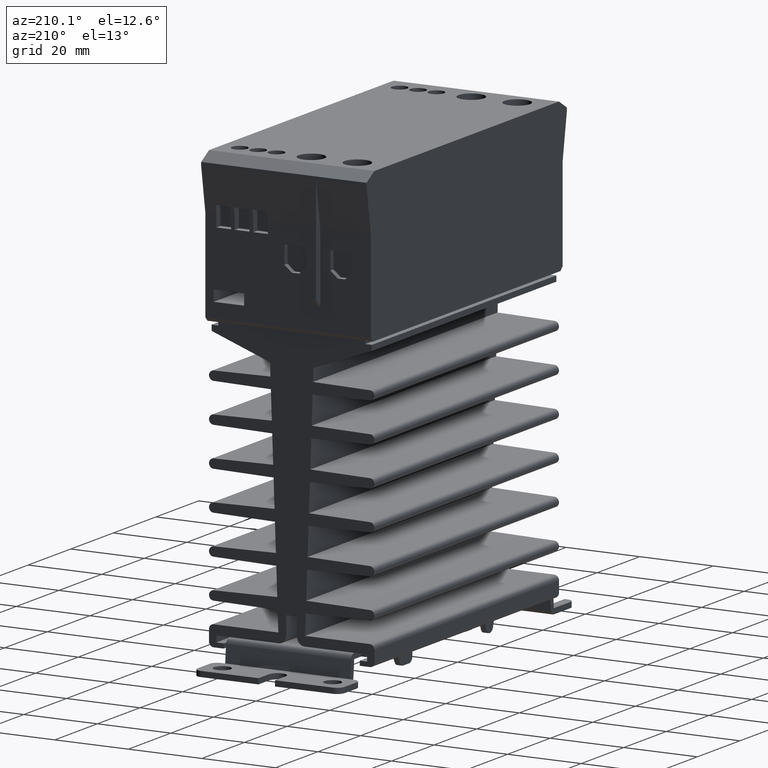
[diagram: clean part render]
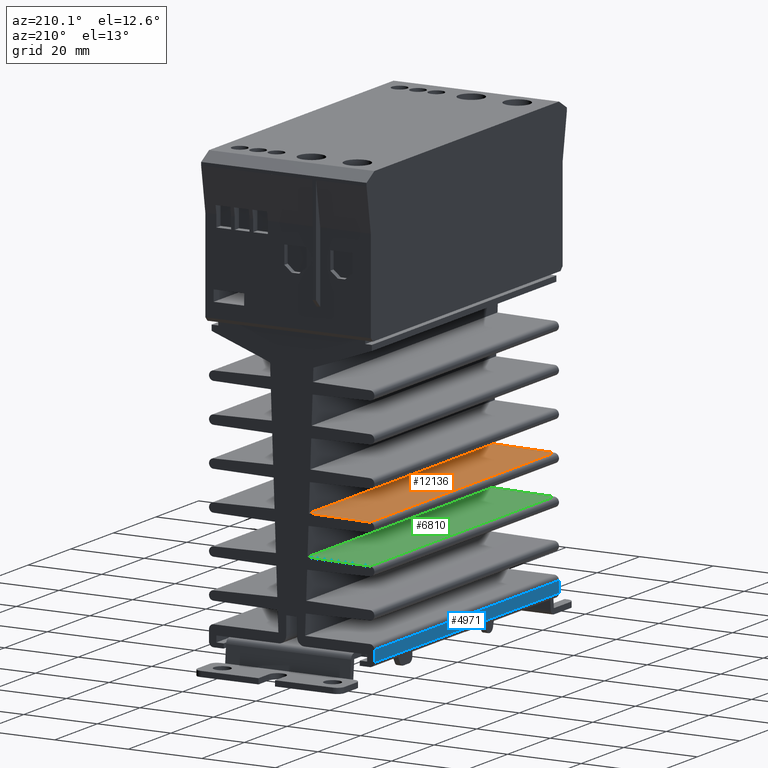
[diagram: same view with three faces highlighted in distinct colors, each labeled with its STEP entity id]
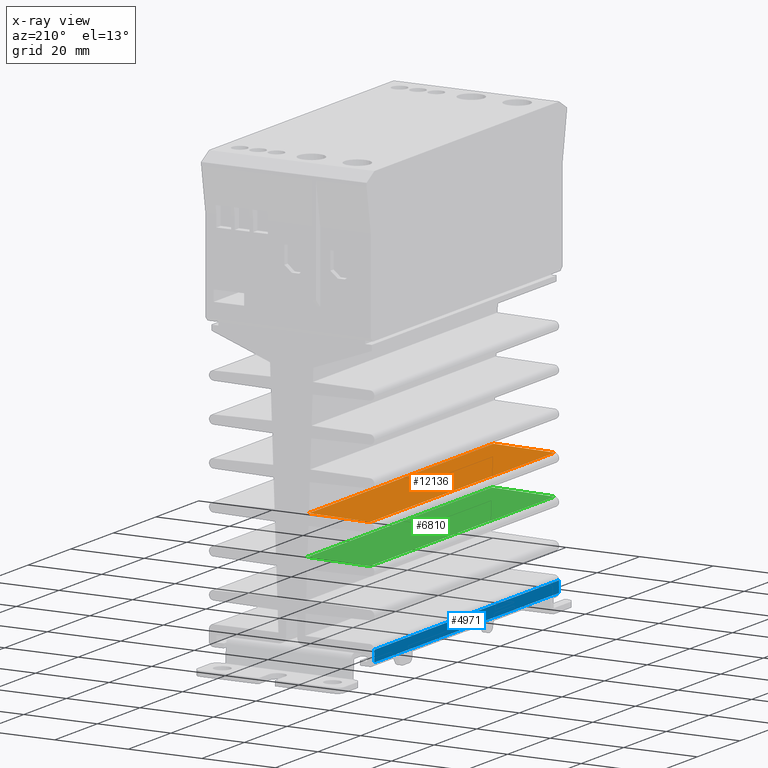
[diagram: x-ray of the same camera — body ghosted, the three highlighted faces saturated]
A machine part, auxiliary view with three faces highlighted in distinct colors.
The next image is the same camera in x-ray (body ghosted, the three faces saturated) — at least one of them is partly hidden behind the body in this view.
Their STEP definitions:

[orange] entity #12136 — the highlighted planar face has unit normal (0.0175, 0, -0.9998).
#493 = DIRECTION ( 'NONE',  ( 1.129400021112925963E-21, -1.000000000000000000, -6.470328387533290063E-20 ) ) ;
#502 = LINE ( 'NONE', #6511, #12016 ) ;
#692 = DIRECTION ( 'NONE',  ( -0.9998476951563911586, 0.000000000000000000, -0.01745240643728455249 ) ) ;
#767 = CARTESIAN_POINT ( 'NONE',  ( 1.223867716535433268E-15, -1.704724409448818978, -1.709798797646474133 ) ) ;
#826 = VECTOR ( 'NONE', #8055, 39.37007874015748854 ) ;
#893 = VERTEX_POINT ( 'NONE', #3731 ) ;
#1159 = ORIENTED_EDGE ( 'NONE', *, *, #11179, .F. ) ;
#1793 = PLANE ( 'NONE',  #9614 ) ;
#3080 = ORIENTED_EDGE ( 'NONE', *, *, #4628, .F. ) ;
#3210 = CARTESIAN_POINT ( 'NONE',  ( -0.1838573246735787370, -1.704724409448818978, -1.713008039186181053 ) ) ;
#3475 = LINE ( 'NONE', #4430, #4489 ) ;
#3731 = CARTESIAN_POINT ( 'NONE',  ( -0.8374730514978977469, 1.704724409448818978, -1.724416944136004215 ) ) ;
#4430 = CARTESIAN_POINT ( 'NONE',  ( -0.8374730514978977469, -1.704724409448818978, -1.724416944136004215 ) ) ;
#4455 = VECTOR ( 'NONE', #493, 39.37007874015748143 ) ;
#4489 = VECTOR ( 'NONE', #7234, 39.37007874015748143 ) ;
#4628 = EDGE_CURVE ( 'NONE', #11361, #10827, #7340, .T. ) ;
#5727 = EDGE_CURVE ( 'NONE', #11361, #893, #502, .T. ) ;
#5772 = CARTESIAN_POINT ( 'NONE',  ( -0.8374730514978977469, -1.704724409448818978, -1.724416944136004215 ) ) ;
#6511 = CARTESIAN_POINT ( 'NONE',  ( -0.1838573246735787370, 1.704724409448818978, -1.713008039186181053 ) ) ;
#6602 = VERTEX_POINT ( 'NONE', #5772 ) ;
#6866 = EDGE_LOOP ( 'NONE', ( #10645, #1159, #10204, #3080 ) ) ;
#7143 = EDGE_CURVE ( 'NONE', #10827, #6602, #9898, .T. ) ;
#7234 = DIRECTION ( 'NONE',  ( -0.000000000000000000, 1.000000000000000000, -0.000000000000000000 ) ) ;
#7271 = CARTESIAN_POINT ( 'NONE',  ( -0.1838573246735787370, -1.704724409448818978, -1.713008039186181053 ) ) ;
#7340 = LINE ( 'NONE', #7271, #4455 ) ;
#8055 = DIRECTION ( 'NONE',  ( -0.9998476951563911586, 0.000000000000000000, -0.01745240643728500005 ) ) ;
#8884 = CARTESIAN_POINT ( 'NONE',  ( -0.1838573246735791533, -1.704724409448818978, -1.713008039186181053 ) ) ;
#9614 = AXIS2_PLACEMENT_3D ( 'NONE', #767, #11383, #10543 ) ;
#9898 = LINE ( 'NONE', #8884, #826 ) ;
#10204 = ORIENTED_EDGE ( 'NONE', *, *, #7143, .F. ) ;
#10543 = DIRECTION ( 'NONE',  ( -0.9998476951563911586, 0.000000000000000000, -0.01745240643728500005 ) ) ;
#10645 = ORIENTED_EDGE ( 'NONE', *, *, #5727, .T. ) ;
#10827 = VERTEX_POINT ( 'NONE', #3210 ) ;
#11179 = EDGE_CURVE ( 'NONE', #6602, #893, #3475, .T. ) ;
#11254 = FACE_OUTER_BOUND ( 'NONE', #6866, .T. ) ;
#11361 = VERTEX_POINT ( 'NONE', #11579 ) ;
#11383 = DIRECTION ( 'NONE',  ( 0.01745240643728500352, 6.471314000000001296E-20, -0.9998476951563912696 ) ) ;
#11579 = CARTESIAN_POINT ( 'NONE',  ( -0.1838573246735787370, 1.704724409448818978, -1.713008039186181053 ) ) ;
#12016 = VECTOR ( 'NONE', #692, 39.37007874015748854 ) ;
#12136 = ADVANCED_FACE ( 'NONE', ( #11254 ), #1793, .F. ) ;

[blue] entity #4971 — the highlighted planar face has unit normal (1, 0, 0).
#843 = CARTESIAN_POINT ( 'NONE',  ( -0.8858267716535432879, 0.000000000000000000, -3.051181102362204633 ) ) ;
#1058 = CARTESIAN_POINT ( 'NONE',  ( -0.8858267716535432879, 1.704724409448818978, -2.931102362204724532 ) ) ;
#1208 = VERTEX_POINT ( 'NONE', #8295 ) ;
#1578 = CARTESIAN_POINT ( 'NONE',  ( -0.8858267716535432879, -1.704724409448818978, -2.931102362204724532 ) ) ;
#1713 = EDGE_CURVE ( 'NONE', #7411, #5882, #3610, .T. ) ;
#2335 = DIRECTION ( 'NONE',  ( 1.000000000000000000, 0.000000000000000000, 0.000000000000000000 ) ) ;
#2488 = VERTEX_POINT ( 'NONE', #1578 ) ;
#2758 = CARTESIAN_POINT ( 'NONE',  ( -0.8858267716535432879, 0.000000000000000000, -2.931102362204724532 ) ) ;
#2885 = CARTESIAN_POINT ( 'NONE',  ( -0.8858267716535432879, 1.704724409448818978, -3.051181102362204633 ) ) ;
#3293 = EDGE_CURVE ( 'NONE', #1208, #5882, #12528, .T. ) ;
#3610 = LINE ( 'NONE', #7761, #12570 ) ;
#4575 = DIRECTION ( 'NONE',  ( 0.000000000000000000, 0.000000000000000000, -1.000000000000000000 ) ) ;
#4971 = ADVANCED_FACE ( 'NONE', ( #9951 ), #8868, .F. ) ;
#5441 = VECTOR ( 'NONE', #7679, 39.37007874015748143 ) ;
#5503 = ORIENTED_EDGE ( 'NONE', *, *, #3293, .F. ) ;
#5575 = LINE ( 'NONE', #2758, #5910 ) ;
#5882 = VERTEX_POINT ( 'NONE', #2885 ) ;
#5910 = VECTOR ( 'NONE', #9663, 39.37007874015748143 ) ;
#6023 = ORIENTED_EDGE ( 'NONE', *, *, #8538, .F. ) ;
#6106 = EDGE_LOOP ( 'NONE', ( #6023, #8801, #11719, #5503 ) ) ;
#7411 = VERTEX_POINT ( 'NONE', #1058 ) ;
#7433 = LINE ( 'NONE', #12479, #10339 ) ;
#7679 = DIRECTION ( 'NONE',  ( 0.000000000000000000, 1.000000000000000000, 0.000000000000000000 ) ) ;
#7761 = CARTESIAN_POINT ( 'NONE',  ( -0.8858267716535432879, 1.704724409448818978, -1.612511619520417216 ) ) ;
#7908 = CARTESIAN_POINT ( 'NONE',  ( -0.8858267716535432879, 0.000000000000000000, -2.881889763779527769 ) ) ;
#8295 = CARTESIAN_POINT ( 'NONE',  ( -0.8858267716535432879, -1.704724409448818978, -3.051181102362204633 ) ) ;
#8538 = EDGE_CURVE ( 'NONE', #2488, #1208, #7433, .T. ) ;
#8801 = ORIENTED_EDGE ( 'NONE', *, *, #9619, .F. ) ;
#8868 = PLANE ( 'NONE',  #10374 ) ;
#9619 = EDGE_CURVE ( 'NONE', #7411, #2488, #5575, .T. ) ;
#9663 = DIRECTION ( 'NONE',  ( -0.000000000000000000, -1.000000000000000000, -0.000000000000000000 ) ) ;
#9829 = DIRECTION ( 'NONE',  ( 0.000000000000000000, 0.000000000000000000, -1.000000000000000000 ) ) ;
#9951 = FACE_OUTER_BOUND ( 'NONE', #6106, .T. ) ;
#10339 = VECTOR ( 'NONE', #11320, 39.37007874015748143 ) ;
#10374 = AXIS2_PLACEMENT_3D ( 'NONE', #7908, #2335, #9829 ) ;
#11320 = DIRECTION ( 'NONE',  ( 0.000000000000000000, 0.000000000000000000, -1.000000000000000000 ) ) ;
#11719 = ORIENTED_EDGE ( 'NONE', *, *, #1713, .T. ) ;
#12479 = CARTESIAN_POINT ( 'NONE',  ( -0.8858267716535432879, -1.704724409448818978, -1.612511619520417216 ) ) ;
#12528 = LINE ( 'NONE', #843, #5441 ) ;
#12570 = VECTOR ( 'NONE', #4575, 39.37007874015748143 ) ;

[green] entity #6810 — the highlighted planar face has unit normal (0.0175, 0, -0.9998).
#9 = VECTOR ( 'NONE', #9255, 39.37007874015748143 ) ;
#95 = VECTOR ( 'NONE', #3965, 39.37007874015748854 ) ;
#111 = EDGE_CURVE ( 'NONE', #12350, #173, #6317, .T. ) ;
#173 = VERTEX_POINT ( 'NONE', #6068 ) ;
#707 = DIRECTION ( 'NONE',  ( -0.9998476951563911586, 0.000000000000000000, -0.01745240643728464963 ) ) ;
#1528 = DIRECTION ( 'NONE',  ( -0.9998476951563911586, 0.000000000000000000, -0.01745240643728500005 ) ) ;
#2874 = VERTEX_POINT ( 'NONE', #4326 ) ;
#3215 = VERTEX_POINT ( 'NONE', #10112 ) ;
#3965 = DIRECTION ( 'NONE',  ( -0.9998476951563911586, 0.000000000000000000, -0.01745240643728545107 ) ) ;
#4001 = EDGE_CURVE ( 'NONE', #173, #2874, #5729, .T. ) ;
#4145 = CARTESIAN_POINT ( 'NONE',  ( -0.1692929677819836609, -1.704724409448818978, -2.130076652036669405 ) ) ;
#4326 = CARTESIAN_POINT ( 'NONE',  ( -0.8374730514978977469, 1.704724409448818978, -2.141739778781673209 ) ) ;
#4357 = FACE_OUTER_BOUND ( 'NONE', #9632, .T. ) ;
#5292 = LINE ( 'NONE', #11162, #9 ) ;
#5370 = DIRECTION ( 'NONE',  ( 0.01745240643728500352, 6.471314000000001296E-20, -0.9998476951563912696 ) ) ;
#5576 = LINE ( 'NONE', #9475, #12242 ) ;
#5729 = LINE ( 'NONE', #12618, #12174 ) ;
#6068 = CARTESIAN_POINT ( 'NONE',  ( -0.8374730514978977469, -1.704724409448818978, -2.141739778781673209 ) ) ;
#6317 = LINE ( 'NONE', #10222, #95 ) ;
#6516 = CARTESIAN_POINT ( 'NONE',  ( 1.223867716535433268E-15, -1.704724409448818978, -2.127121632292146014 ) ) ;
#6810 = ADVANCED_FACE ( 'NONE', ( #4357 ), #8253, .F. ) ;
#6997 = ORIENTED_EDGE ( 'NONE', *, *, #4001, .F. ) ;
#8014 = ORIENTED_EDGE ( 'NONE', *, *, #10275, .F. ) ;
#8253 = PLANE ( 'NONE',  #11438 ) ;
#8659 = ORIENTED_EDGE ( 'NONE', *, *, #11432, .T. ) ;
#9255 = DIRECTION ( 'NONE',  ( 1.129400021112925963E-21, -1.000000000000000000, -6.470328387533290063E-20 ) ) ;
#9475 = CARTESIAN_POINT ( 'NONE',  ( -0.1692929677819836609, 1.704724409448818978, -2.130076652036669405 ) ) ;
#9492 = DIRECTION ( 'NONE',  ( -0.000000000000000000, 1.000000000000000000, -0.000000000000000000 ) ) ;
#9632 = EDGE_LOOP ( 'NONE', ( #8659, #6997, #10733, #8014 ) ) ;
#10112 = CARTESIAN_POINT ( 'NONE',  ( -0.1692929677819836609, 1.704724409448818978, -2.130076652036669405 ) ) ;
#10222 = CARTESIAN_POINT ( 'NONE',  ( -0.1692929677819836609, -1.704724409448818978, -2.130076652036669405 ) ) ;
#10275 = EDGE_CURVE ( 'NONE', #3215, #12350, #5292, .T. ) ;
#10733 = ORIENTED_EDGE ( 'NONE', *, *, #111, .F. ) ;
#11162 = CARTESIAN_POINT ( 'NONE',  ( -0.1692929677819836609, -1.704724409448818978, -2.130076652036669405 ) ) ;
#11432 = EDGE_CURVE ( 'NONE', #3215, #2874, #5576, .T. ) ;
#11438 = AXIS2_PLACEMENT_3D ( 'NONE', #6516, #5370, #1528 ) ;
#12174 = VECTOR ( 'NONE', #9492, 39.37007874015748143 ) ;
#12242 = VECTOR ( 'NONE', #707, 39.37007874015748854 ) ;
#12350 = VERTEX_POINT ( 'NONE', #4145 ) ;
#12618 = CARTESIAN_POINT ( 'NONE',  ( -0.8374730514978977469, -1.704724409448818978, -2.141739778781673209 ) ) ;